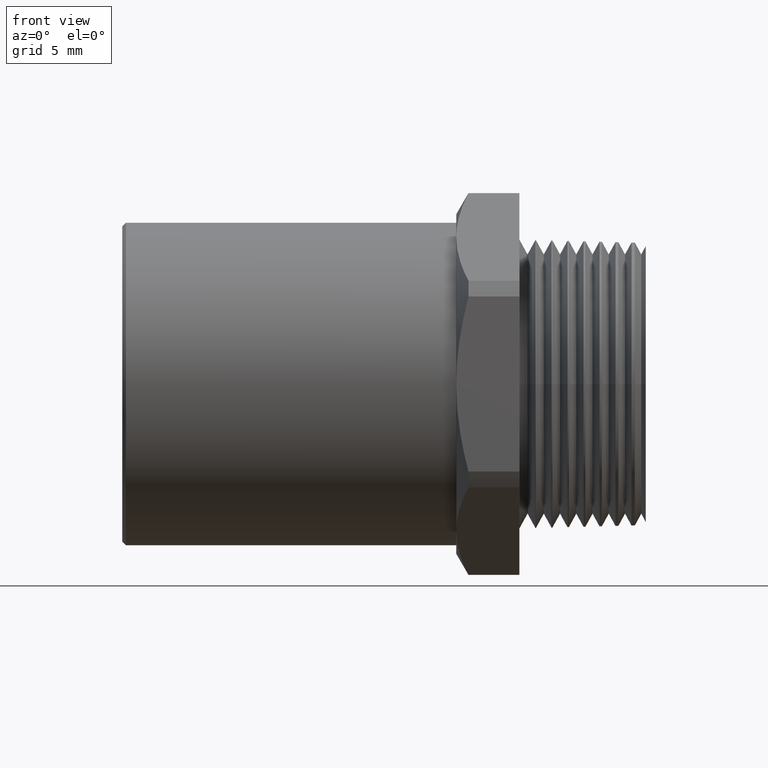
[diagram: clean part render]
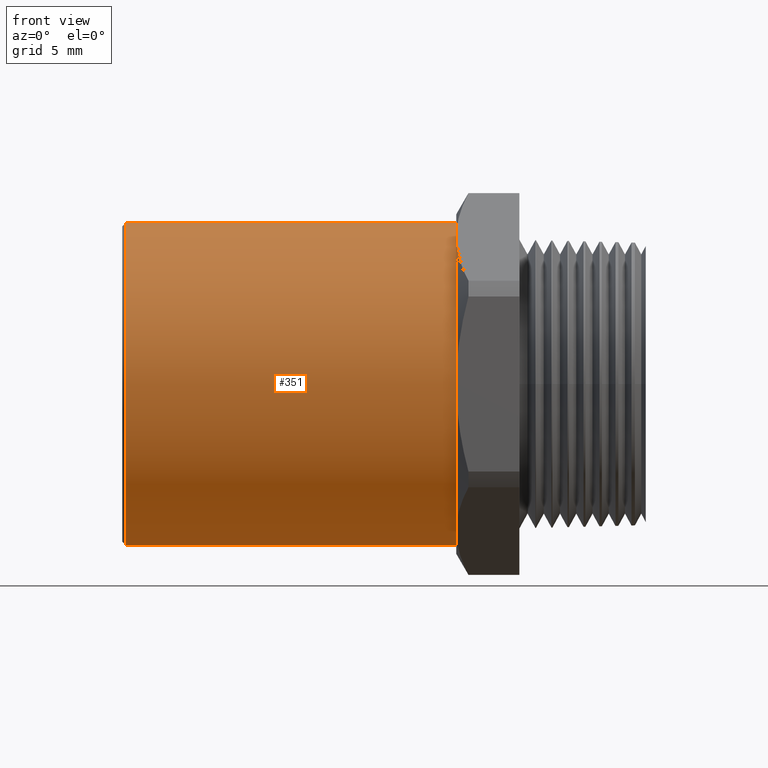
[diagram: same view with one face highlighted and labeled with its STEP entity id]
A machine part, front view. The second image highlights one B-rep face of the part: STEP entity #351.
In plain terms, the highlighted cylindrical surface (partial cylindrical patch) has radius 11.3411 mm, axis along (-1, 0, 0).
Its self-contained STEP definition (entity closure, byte-faithful):
#2 = VERTEX_POINT ( 'NONE', #917 ) ;
#82 = VERTEX_POINT ( 'NONE', #1048 ) ;
#349 = ORIENTED_EDGE ( 'NONE', *, *, #591, .T. ) ;
#350 = ORIENTED_EDGE ( 'NONE', *, *, #730, .T. ) ;
#351 = ADVANCED_FACE ( 'NONE', ( #1479 ), #1478, .T. ) ;
#356 = EDGE_CURVE ( 'NONE', #2, #82, #1462, .T. ) ;
#361 = EDGE_LOOP ( 'NONE', ( #368, #350, #349, #367 ) ) ;
#367 = ORIENTED_EDGE ( 'NONE', *, *, #356, .T. ) ;
#368 = ORIENTED_EDGE ( 'NONE', *, *, #536, .F. ) ;
#497 = VERTEX_POINT ( 'NONE', #1751 ) ;
#536 = EDGE_CURVE ( 'NONE', #497, #82, #1855, .T. ) ;
#562 = VERTEX_POINT ( 'NONE', #1872 ) ;
#591 = EDGE_CURVE ( 'NONE', #562, #2, #1951, .T. ) ;
#730 = EDGE_CURVE ( 'NONE', #497, #562, #2249, .T. ) ;
#917 = CARTESIAN_POINT ( 'NONE',  ( -1.439999999999999900, 0.0000000000000000000, 0.4465000000000000100 ) ) ;
#1048 = CARTESIAN_POINT ( 'NONE',  ( -1.439999999999999900, 5.468047958192932300E-017, -0.4465000000000000100 ) ) ;
#1458 = DIRECTION ( 'NONE',  ( 0.0000000000000000000, 0.0000000000000000000, -1.000000000000000000 ) ) ;
#1459 = DIRECTION ( 'NONE',  ( 1.000000000000000000, 0.0000000000000000000, 0.0000000000000000000 ) ) ;
#1460 = CARTESIAN_POINT ( 'NONE',  ( -1.439999999999999900, 0.0000000000000000000, 0.0000000000000000000 ) ) ;
#1461 = AXIS2_PLACEMENT_3D ( 'NONE', #1460, #1459, #1458 ) ;
#1462 = CIRCLE ( 'NONE', #1461, 0.4465000000000000100 ) ;
#1473 = DIRECTION ( 'NONE',  ( 0.0000000000000000000, 0.0000000000000000000, 1.000000000000000000 ) ) ;
#1474 = DIRECTION ( 'NONE',  ( -1.000000000000000000, 0.0000000000000000000, 0.0000000000000000000 ) ) ;
#1475 = CARTESIAN_POINT ( 'NONE',  ( -0.5911096051061856000, 0.0000000000000000000, 0.0000000000000000000 ) ) ;
#1476 = AXIS2_PLACEMENT_3D ( 'NONE', #1475, #1474, #1473 ) ;
#1478 = CYLINDRICAL_SURFACE ( 'NONE', #1476, 0.4465000000000000100 ) ;
#1479 = FACE_OUTER_BOUND ( 'NONE', #361, .T. ) ;
#1751 = CARTESIAN_POINT ( 'NONE',  ( -0.5249999999999999100, 5.468047958192934100E-017, -0.4465000000000000600 ) ) ;
#1852 = DIRECTION ( 'NONE',  ( -1.000000000000000000, 0.0000000000000000000, 0.0000000000000000000 ) ) ;
#1853 = VECTOR ( 'NONE', #1852, 39.37007874015748100 ) ;
#1854 = CARTESIAN_POINT ( 'NONE',  ( -0.5911096051061856000, 5.468047958192932300E-017, -0.4465000000000000100 ) ) ;
#1855 = LINE ( 'NONE', #1854, #1853 ) ;
#1872 = CARTESIAN_POINT ( 'NONE',  ( -0.5249999999999999100, 0.0000000000000000000, 0.4465000000000001200 ) ) ;
#1948 = DIRECTION ( 'NONE',  ( -1.000000000000000000, 0.0000000000000000000, 0.0000000000000000000 ) ) ;
#1949 = VECTOR ( 'NONE', #1948, 39.37007874015748100 ) ;
#1950 = CARTESIAN_POINT ( 'NONE',  ( -0.5911096051061856000, 0.0000000000000000000, 0.4465000000000000100 ) ) ;
#1951 = LINE ( 'NONE', #1950, #1949 ) ;
#2245 = DIRECTION ( 'NONE',  ( 0.0000000000000000000, 0.0000000000000000000, 1.000000000000000000 ) ) ;
#2246 = DIRECTION ( 'NONE',  ( -1.000000000000000000, 0.0000000000000000000, 0.0000000000000000000 ) ) ;
#2247 = CARTESIAN_POINT ( 'NONE',  ( -0.5249999999999999100, 0.0000000000000000000, 0.0000000000000000000 ) ) ;
#2248 = AXIS2_PLACEMENT_3D ( 'NONE', #2247, #2246, #2245 ) ;
#2249 = CIRCLE ( 'NONE', #2248, 0.4465000000000001200 ) ;